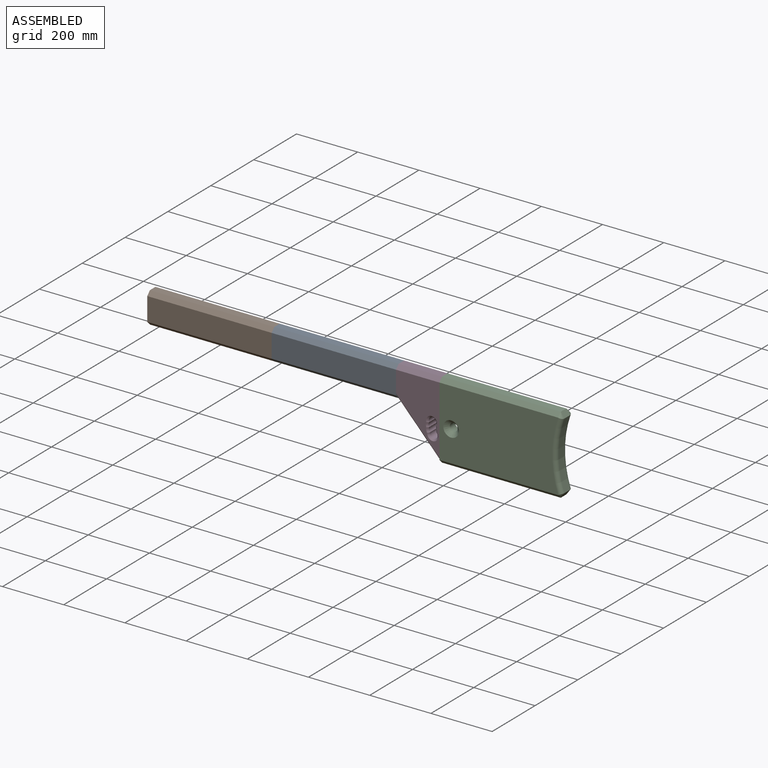
[diagram: assembled view]
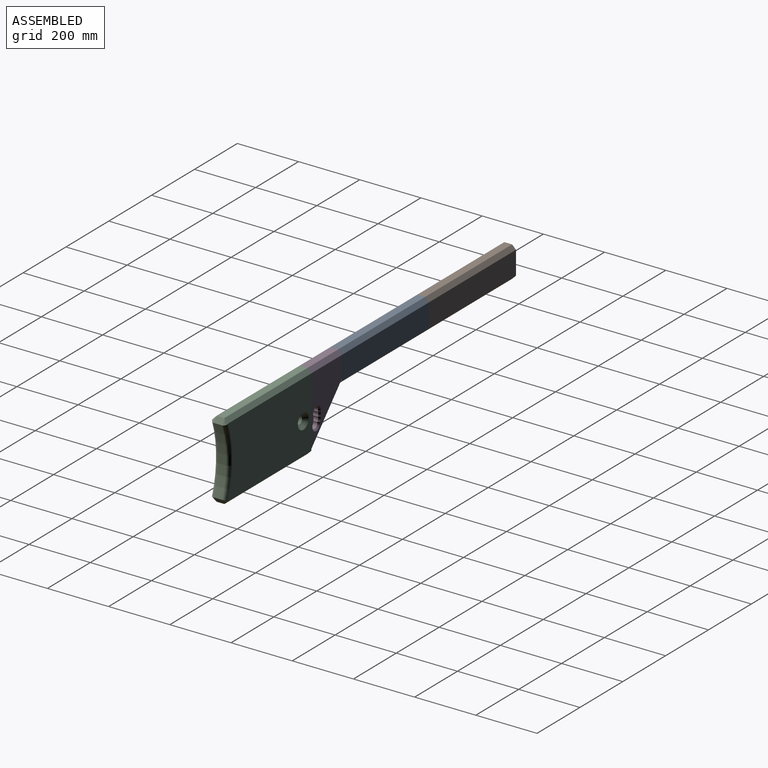
[diagram: assembled view, second angle]
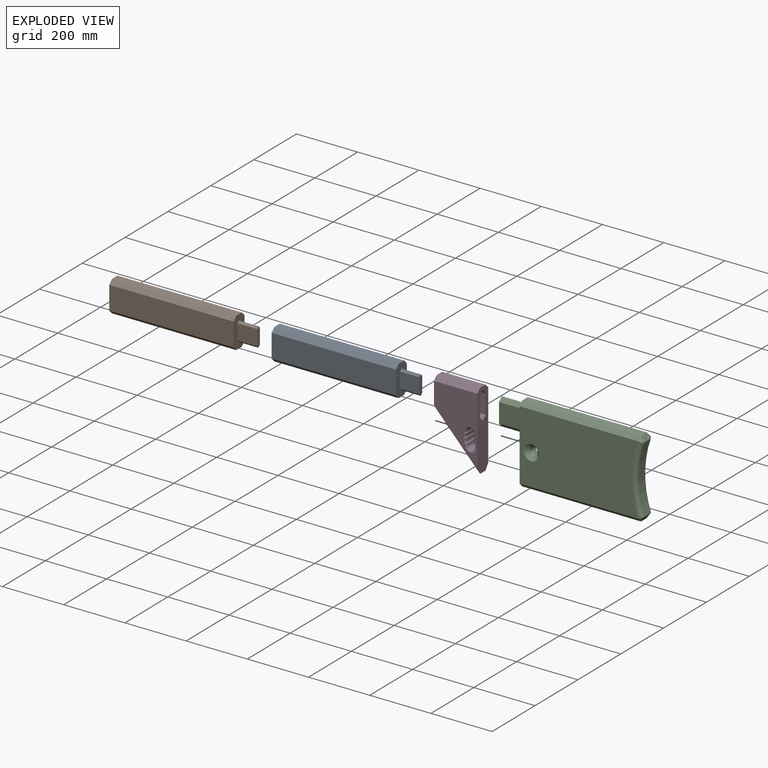
[diagram: exploded view]
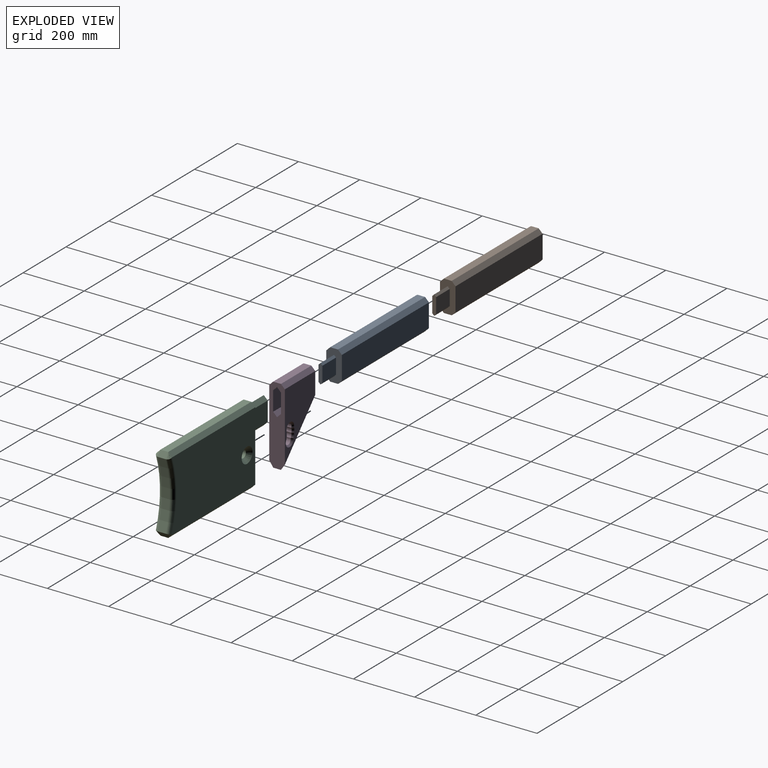
[diagram: exploded view, second angle]
ASSEMBLY  parts=4 mates=3
PART A: 24 faces, bbox 469.9x101.6x50.8 mm
  f0: plane 101.6x50.8mm, normal (-1,0,0), area 4112.9mm2, adj f2,f3,f4,f5,f6,f7,f8,f9
  f1: plane 101.6x50.8mm, normal (1,0,0), area 4112.9mm2, adj f2,f3,f4,f5,f6,f7,f8,f9
  f2: plane 406.4x76.2mm, normal (0,0,1), area 30967.7mm2, adj f0,f1,f7,f8
  f3: plane 406.4x76.2mm, normal (0,0,-1), area 30967.7mm2, adj f0,f1,f6,f9
  f4: plane 406.4x25.4mm, normal (0,-1,0), area 10322.6mm2, adj f0,f1,f8,f9
  f5: plane 406.4x25.4mm, normal (0,1,0), area 10322.6mm2, adj f0,f1,f6,f7
  f6: plane 406.4x12.7mm, normal (0,0.71,-0.71), area 7299.2mm2, adj f0,f1,f3,f5
  f7: plane 406.4x12.7mm, normal (0,0.71,0.71), area 7299.2mm2, adj f0,f1,f2,f5
  f8: plane 406.4x12.7mm, normal (0,-0.71,0.71), area 7299.2mm2, adj f0,f1,f2,f4
  f9: plane 406.4x12.7mm, normal (0,-0.71,-0.71), area 7299.2mm2, adj f0,f1,f3,f4
  f10: plane 63.5x50.8mm, normal (0,0,-1), area 3225.8mm2, adj f1,f12,f14,f15
  f11: plane 63.5x50.8mm, normal (0,0,1), area 3225.8mm2, adj f1,f12,f13,f16
  f12: plane 63.5x12.7mm, normal (1,0,0), area 725.8mm2, adj f10,f11,f13,f14,f15,f16
  f13: plane 63.5x6.35mm, normal (0,-0.71,0.71), area 570.2mm2, adj f1,f11,f12,f14
  f14: plane 63.5x6.35mm, normal (0,-0.71,-0.71), area 570.2mm2, adj f1,f10,f12,f13
  f15: plane 63.5x6.35mm, normal (0,0.71,-0.71), area 570.2mm2, adj f1,f10,f12,f16
  f16: plane 63.5x6.35mm, normal (0,0.71,0.71), area 570.2mm2, adj f1,f11,f12,f15
  f17: plane 63.5x50.8mm, normal (0,0,1), area 3225.8mm2, adj f0,f19,f21,f22
  f18: plane 63.5x50.8mm, normal (0,0,-1), area 3225.8mm2, adj f0,f19,f20,f23
  f19: plane 63.5x12.7mm, normal (-1,0,0), area 725.8mm2, adj f17,f18,f20,f21,f22,f23
  f20: plane 63.5x6.35mm, normal (0,-0.71,-0.71), area 570.2mm2, adj f0,f18,f19,f21
  f21: plane 63.5x6.35mm, normal (0,-0.71,0.71), area 570.2mm2, adj f0,f17,f19,f20
  f22: plane 63.5x6.35mm, normal (0,0.71,0.71), area 570.2mm2, adj f0,f17,f19,f23
  f23: plane 63.5x6.35mm, normal (0,0.71,-0.71), area 570.2mm2, adj f0,f18,f19,f22
PART B: 22 faces, bbox 469.9x101.6x50.8 mm
  f0: plane 101.6x50.8mm, normal (1,0,0), area 4112.9mm2, adj f2,f3,f4,f5,f6,f7,f8,f9
  f1: plane 101.6x50.8mm, normal (-1,0,0), area 2903.2mm2, adj f2,f3,f4,f5,f6,f7,f8,f9
  f2: plane 406.4x76.2mm, normal (0,0,1), area 30967.7mm2, adj f0,f1,f7,f8
  f3: plane 406.4x76.2mm, normal (0,0,-1), area 30967.7mm2, adj f0,f1,f6,f9
  f4: plane 406.4x25.4mm, normal (0,-1,0), area 10322.6mm2, adj f0,f1,f8,f9
  f5: plane 406.4x25.4mm, normal (0,1,0), area 10322.6mm2, adj f0,f1,f6,f7
  f6: plane 406.4x12.7mm, normal (0,0.71,-0.71), area 7299.2mm2, adj f0,f1,f3,f5
  f7: plane 406.4x12.7mm, normal (0,0.71,0.71), area 7299.2mm2, adj f0,f1,f2,f5
  f8: plane 406.4x12.7mm, normal (0,-0.71,0.71), area 7299.2mm2, adj f0,f1,f2,f4
  f9: plane 406.4x12.7mm, normal (0,-0.71,-0.71), area 7299.2mm2, adj f0,f1,f3,f4
  f10: plane 25.4x25.4mm, normal (0,1,0), area 645.2mm2, adj f1,f11,f13,f14
  f11: plane 76.2x25.4mm, normal (0,0,-1), area 1935.5mm2, adj f1,f10,f12,f14
  f12: plane 25.4x25.4mm, normal (0,-1,0), area 645.2mm2, adj f1,f11,f13,f14
  f13: plane 76.2x25.4mm, normal (0,0,1), area 1935.5mm2, adj f1,f10,f12,f14
  f14: plane 76.2x25.4mm, normal (-1,0,0), area 1935.5mm2, adj f10,f11,f12,f13
  f15: plane 63.5x50.8mm, normal (0,0,-1), area 3225.8mm2, adj f0,f17,f19,f21
  f16: plane 63.5x50.8mm, normal (0,0,1), area 3225.8mm2, adj f0,f17,f18,f20
  f17: plane 63.5x12.7mm, normal (1,0,0), area 725.8mm2, adj f15,f16,f18,f19,f20,f21
  f18: plane 63.5x6.35mm, normal (0,-0.71,0.71), area 570.2mm2, adj f0,f16,f17,f19
  f19: plane 63.5x6.35mm, normal (0,-0.71,-0.71), area 570.2mm2, adj f0,f15,f17,f18
  f20: plane 63.5x6.35mm, normal (0,0.71,0.71), area 570.2mm2, adj f0,f16,f17,f21
  f21: plane 63.5x6.35mm, normal (0,0.71,-0.71), area 570.2mm2, adj f0,f15,f17,f20
PART C: 28 faces, bbox 481.5x56.2x259.4 mm
  f0: plane 254x50.8mm, normal (-1,0,0), area 10645.1mm2, adj f1,f3,f4,f5,f8,f10,f13,f14
  f1: plane 387.88x25.4mm, normal (0,0,-1), area 9852mm2, adj f0,f20,f21,f24
  f2: cylinder r=328.67mm len=220.1mm, axis (0,1,0), area 5700.5mm2, adj f6,f7,f11,f24
  f3: plane 387.88x25.4mm, normal (0,0,1), area 9852mm2, adj f0,f8,f10,f11
  f4: plane 387.88x228.6mm, normal (0,-1,0), area 83621mm2, adj f0,f7,f10,f20,f27
  f5: plane 387.88x228.6mm, normal (0,1,0), area 83621mm2, adj f0,f6,f8,f21,f26
  f6: torus R=341.37mm, axis (0,-1,0), area 4540.1mm2, adj f2,f5,f9,f23
  f7: torus R=341.37mm, axis (0,-1,0), area 4540.1mm2, adj f2,f4,f12,f22
  f8: plane 392.84x17.66mm, normal (0,0.71,0.71), area 6966.5mm2, adj f0,f3,f5,f9
  f9: bspline ~16.95x12.7mm, area 126.9mm2, adj f6,f8,f11
  f10: plane 387.88x12.7mm, normal (0,-0.71,0.71), area 6966.5mm2, adj f0,f3,f4,f12
  f11: plane 30.83x22.38mm, normal (0.82,0,0.58), area 527.1mm2, adj f2,f3,f9,f12
  f12: bspline ~16.95x12.7mm, area 193.8mm2, adj f7,f10,f11
  f13: plane 76.2x63.5mm, normal (0,-1,0), area 4838.7mm2, adj f0,f15,f16,f18
  f14: plane 76.2x63.5mm, normal (0,1,0), area 4838.7mm2, adj f0,f15,f17,f19
  f15: plane 88.9x25.4mm, normal (-1,0,0), area 1935.5mm2, adj f13,f14,f16,f17,f18,f19
  f16: plane 76.2x12.7mm, normal (0,-0.71,-0.71), area 1368.6mm2, adj f0,f13,f15,f17
  f17: plane 76.2x12.7mm, normal (0,0.71,-0.71), area 1368.6mm2, adj f0,f14,f15,f16
  f18: plane 76.2x12.7mm, normal (0,-0.71,0.71), area 1368.6mm2, adj f0,f13,f15,f19
  f19: plane 76.2x12.7mm, normal (0,0.71,0.71), area 1368.6mm2, adj f0,f14,f15,f18
  f20: plane 392.84x17.66mm, normal (0,-0.71,-0.71), area 6966.5mm2, adj f0,f1,f4,f22
  f21: plane 387.88x12.7mm, normal (0,0.71,-0.71), area 6966.5mm2, adj f0,f1,f5,f23
  f22: bspline ~16.95x12.7mm, area 126.9mm2, adj f7,f20,f24
  f23: bspline ~16.95x12.7mm, area 192mm2, adj f6,f21,f24
  f24: plane 30.83x22.38mm, normal (0.82,0,-0.58), area 527.1mm2, adj f1,f2,f22,f23
  f25: cylinder r=12.7mm len=25.4mm, axis (0,-1,0), area 2026.8mm2, adj f26,f27
  f26: cone r=25.4mm half-angle=45deg, axis (0,1,0), area 2149.8mm2, adj f5,f25
  f27: cone r=12.7mm half-angle=45deg, axis (0,-1,0), area 2149.8mm2, adj f4,f25
PART D: 42 faces, bbox 142x50.8x254 mm
  f0: plane 101.6x50.8mm, normal (-1,0,0), area 4037.6mm2, adj f2,f3,f4,f5,f6,f7,f8,f9
  f1: plane 254x50.8mm, normal (1,0,0), area 10569.8mm2, adj f2,f3,f4,f5,f6,f7,f8,f9
  f2: plane 152.4x141.99mm, normal (-0.73,0,-0.68), area 5290.7mm2, adj f0,f1,f8,f9
  f3: plane 141.99x25.4mm, normal (0,0,1), area 3606.4mm2, adj f0,f1,f6,f7
  f4: plane 222.67x141.99mm, normal (0,-1,0), area 18478.4mm2, adj f0,f1,f6,f9,f30,f31,f32,f33
  f5: plane 222.67x141.99mm, normal (0,1,0), area 18478.4mm2, adj f0,f1,f7,f8,f36,f37,f38,f39
  f6: plane 141.99x12.7mm, normal (0,-0.71,0.71), area 2550.1mm2, adj f0,f1,f3,f4
  f7: plane 141.99x12.7mm, normal (0,0.71,0.71), area 2550.1mm2, adj f0,f1,f3,f5
  f8: plane 171.03x141.99mm, normal (-0.52,0.71,-0.48), area 3741.1mm2, adj f0,f1,f2,f5
  f9: plane 171.03x141.99mm, normal (-0.52,-0.71,-0.48), area 3741.1mm2, adj f0,f1,f2,f4
  f10: plane 76.2x63.5mm, normal (0,-1,0), area 4838.7mm2, adj f1,f12,f13,f16
  f11: plane 76.2x63.5mm, normal (0,1,0), area 4838.7mm2, adj f1,f12,f14,f15
  f12: plane 88.9x25.4mm, normal (1,0,0), area 1935.5mm2, adj f10,f11,f13,f14,f15,f16
  f13: plane 76.2x12.7mm, normal (0,-0.71,0.71), area 1368.6mm2, adj f1,f10,f12,f14
  f14: plane 76.2x12.7mm, normal (0,0.71,0.71), area 1368.6mm2, adj f1,f11,f12,f13
  f15: plane 76.2x12.7mm, normal (0,0.71,-0.71), area 1368.6mm2, adj f1,f11,f12,f16
  f16: plane 76.2x12.7mm, normal (0,-0.71,-0.71), area 1368.6mm2, adj f1,f10,f12,f15
  f17: plane 63.5x50.8mm, normal (0,1,0), area 3225.8mm2, adj f0,f19,f20,f23
  f18: plane 63.5x50.8mm, normal (0,-1,0), area 3225.8mm2, adj f0,f19,f21,f22
  f19: plane 63.5x12.7mm, normal (-1,0,0), area 725.8mm2, adj f17,f18,f20,f21,f22,f23
  f20: plane 63.5x6.35mm, normal (0,0.71,0.71), area 570.2mm2, adj f0,f17,f19,f21
  f21: plane 63.5x6.35mm, normal (0,-0.71,0.71), area 570.2mm2, adj f0,f18,f19,f20
  f22: plane 63.5x6.35mm, normal (0,-0.71,-0.71), area 570.2mm2, adj f0,f18,f19,f23
  f23: plane 63.5x6.35mm, normal (0,0.71,-0.71), area 570.2mm2, adj f0,f17,f19,f22
  f24: cylinder r=12.7mm len=40.64mm, axis (0,-1,0), area 458mm2, adj f25,f29,f30,f37
  f25: cylinder r=12.7mm len=40.64mm, axis (0,-1,0), area 438.9mm2, adj f24,f26,f32,f36
  f26: cylinder r=12.7mm len=40.64mm, axis (0,-1,0), area 2162mm2, adj f25,f27,f34,f38
  f27: cylinder r=12.7mm len=40.64mm, axis (0,-1,0), area 642.1mm2, adj f26,f28,f35,f40
  f28: cylinder r=12.7mm len=40.64mm, axis (0,-1,0), area 623mm2, adj f27,f29,f33,f41
  f29: cylinder r=12.7mm len=40.64mm, axis (0,-1,0), area 2162mm2, adj f24,f28,f31,f39
  f30: cone r=12.7mm half-angle=45deg, axis (0,-1,0), area 76.7mm2, adj f4,f24,f31,f32
  f31: cone r=12.7mm half-angle=45deg, axis (0,-1,0), area 438.2mm2, adj f4,f29,f30,f33
  f32: cone r=12.7mm half-angle=45deg, axis (0,-1,0), area 72.7mm2, adj f4,f25,f30,f34
  f33: cone r=12.7mm half-angle=45deg, axis (0,-1,0), area 111.7mm2, adj f4,f28,f31,f35
  f34: cone r=12.7mm half-angle=45deg, axis (0,-1,0), area 438.2mm2, adj f4,f26,f32,f35
  f35: cone r=12.7mm half-angle=45deg, axis (0,-1,0), area 115.8mm2, adj f4,f27,f33,f34
  f36: cone r=17.78mm half-angle=45deg, axis (0,1,0), area 72.7mm2, adj f5,f25,f37,f38
  f37: cone r=17.78mm half-angle=45deg, axis (0,1,0), area 76.7mm2, adj f5,f24,f36,f39
  f38: cone r=17.78mm half-angle=45deg, axis (0,1,0), area 438.2mm2, adj f5,f26,f36,f40
  f39: cone r=17.78mm half-angle=45deg, axis (0,1,0), area 438.2mm2, adj f5,f29,f37,f41
  f40: cone r=17.78mm half-angle=45deg, axis (0,1,0), area 115.8mm2, adj f5,f27,f38,f41
  f41: cone r=17.78mm half-angle=45deg, axis (0,1,0), area 111.7mm2, adj f5,f28,f39,f40
PLACE A rot(axis=(1,0,0),90deg) t=(-406.14,94.56,-37.48)mm
PLACE B rot(axis=(1,0,0),90deg) t=(-812.54,94.56,-37.46)mm
PLACE C t=(142.25,94.56,-113.68)mm
PLACE D t=(-60.95,94.56,-88.28)mm
MATE fastened A.f12 <-> D.f19  axis (1,0,0) through (-139.44,94.56,-37.49)mm
MATE fastened B.f17 <-> A.f19  axis (1,0,0) through (-545.84,94.56,-37.47)mm
MATE fastened D.f1 <-> C.f0  axis (1,0,0) through (-60.95,94.56,0.62)mm
